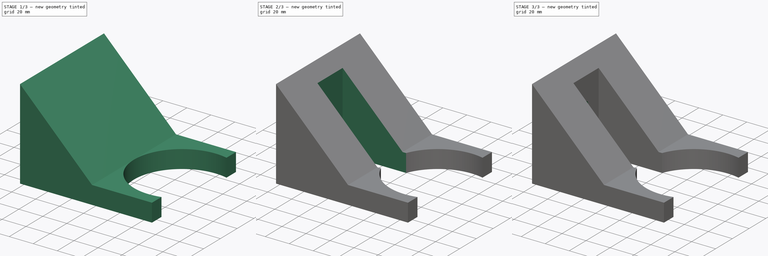
[diagram: build sequence overview — one tinted view per stage of 3, left to right]
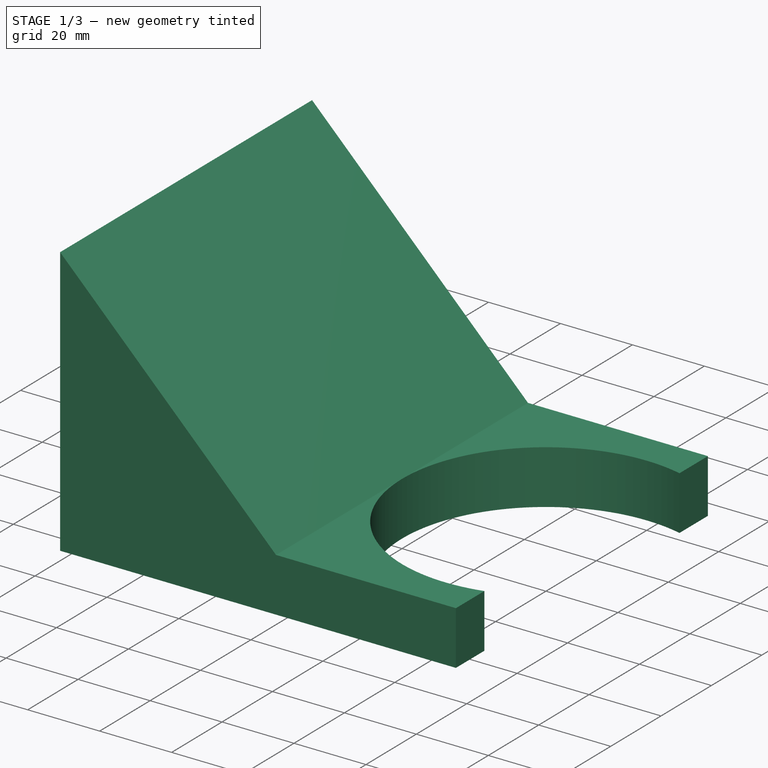
[diagram: stage 1 of 3 — iso view after this stage's code; geometry added in this stage tinted green]
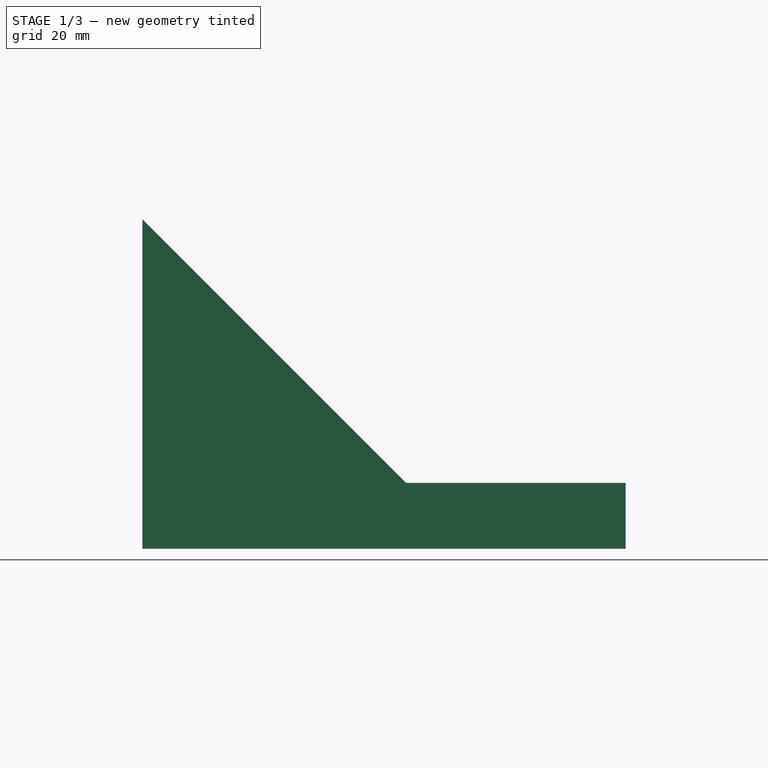
[diagram: stage 1 of 3 — front view after this stage's code; geometry added in this stage tinted green]
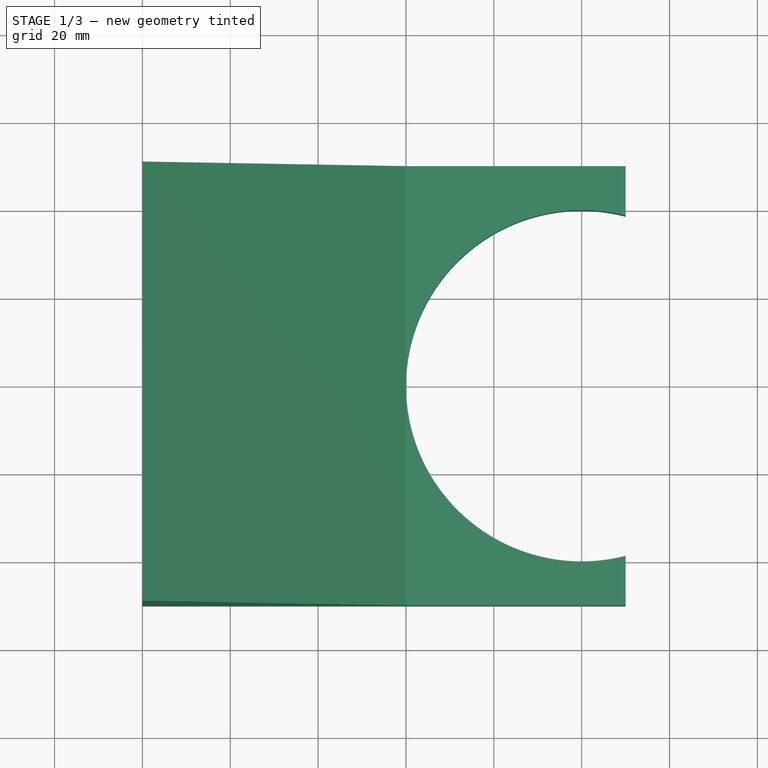
[diagram: stage 1 of 3 — top view after this stage's code; geometry added in this stage tinted green]
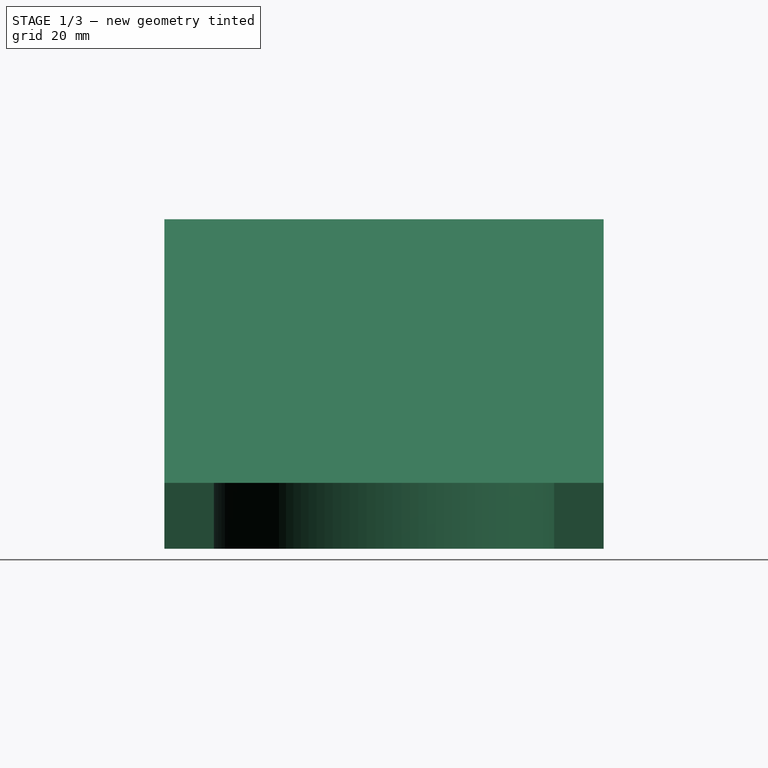
[diagram: stage 1 of 3 — right view after this stage's code; geometry added in this stage tinted green]
FCSTD DOCUMENT  (FreeCAD 1.0R39109 (Git))
Label: vacuumCleanerWallMount
License: All rights reserved
LicenseURL: https://en.wikipedia.org/wiki/All_rights_reserved
objects: Sketcher::SketchObject×3, PartDesign::Pocket×2, PartDesign::Pad×1, Spreadsheet::Sheet×1, PartDesign::SubtractiveCylinder×1, PartDesign::LinearPattern×1, PartDesign::Body×1
note: 21 computed .brp shape members not serialized (recipe doc carries the construction recipe); baked Part::Feature solids carry a one-line shape summary decoded from their .brp

FEATURE [Sketcher::SketchObject] Sketch
  ArcFitTolerance = 1e-06
  AttachmentSupport = -> [XZ_Plane]
  FullyConstrained = true
  MakeInternals = false
  MapMode = 5
  Placement = pos=(0,0,0) rot=(1,0,0;1.5708rad)
  expr: .Constraints.whole_length = <<mea>>.wallToTrashHolder + <<mea>>.trashHolderDia / 2 + <<mea>>.trashHolderClipOffset
  expr: Constraints[15] = <<mea>>.mountThickness
  expr: Constraints[18] = <<mea>>.wallToTrashHolder
  sketch-geometry (7):
    g0: LineSegment StartX=60 StartY=15 StartZ=0 EndX=110 EndY=15 EndZ=0
    g1: LineSegment StartX=110 StartY=15 StartZ=0 EndX=110 EndY=0 EndZ=0
    g2: LineSegment [constr] StartX=110 StartY=0 StartZ=0 EndX=0 EndY=-110 EndZ=0
    g3: LineSegment [constr] StartX=0 StartY=75 StartZ=0 EndX=0 EndY=-110 EndZ=0
    g4: LineSegment StartX=0 StartY=75 StartZ=0 EndX=60 EndY=15 EndZ=0
    g5: LineSegment StartX=0 StartY=0 StartZ=0 EndX=110 EndY=0 EndZ=0
    g6: LineSegment StartX=0 StartY=75 StartZ=0 EndX=0 EndY=0 EndZ=0
  constraints (19):
    c: PointOnObject(g3,g-2)
    c: Horizontal(g0)
    c: Coincident(g1,g0)
    c: Vertical(g1)
    c: Angle(g-1,g2) = -2.35619
    c: Coincident(g2,g1)
    c: PointOnObject(g2,g-2)
    c: Coincident(g3,g2)
    c: Angle(g-1,g4) = -0.785398
    c: Coincident(g4,g3)
    c: Coincident(g4,g0)
    c: PointOnObject(g1,g-1)
    c: Distance(g1,g3) = 110  'whole_length'
    c: Coincident(g5,g-1)
    c: Coincident(g5,g1)
    c: Distance(g1,g1) = 15
    c: Coincident(g6,g3)
    c: Coincident(g6,g5)
    c: DistanceX(g-1,g0) = 60
FEATURE [PartDesign::Pad] Pad
  Direction = (0,-1,2e-16)
  Length = 100
  Length2 = 10
  Midplane = true
  Placement = pos=(0,0,0) rot=(1,0,0;1.5708rad)
  Profile = -> Sketch
  ReferenceAxis = -> Sketch [N_Axis]
  Refine = true
  Suppressed = false
  Type = 0
  expr: Length = <<mea>>.trashHolderDia + <<mea>>.wallThickness * 2
FEATURE [Sketcher::SketchObject] Sketch001
  ArcFitTolerance = 1e-06
  AttachmentSupport = -> [Pad]
  ExternalGeometry = -> [Pad]
  FullyConstrained = true
  MakeInternals = false
  MapMode = 5
  Placement = pos=(0,3.3e-15,15) rot=(0,0,1;3.14159rad)
  expr: Constraints[1] = <<mea>>.trashHolderDia
  expr: Constraints[4] = <<mea>>.wallToTrashHolder
  sketch-geometry (2):
    g0: Circle CenterX=-100 CenterY=0 CenterZ=0 NormalX=0 NormalY=0 NormalZ=1 AngleXU=0 Radius=40
    g1: GeomPoint [constr] X=-60 Y=0 Z=0
  constraints (5):
    c: PointOnObject(g0,g-1)
    c: Diameter(g0) = 80
    c: PointOnObject(g1,g0)
    c: PointOnObject(g1,g-1)
    c: DistanceX(g1,g-1) = 60
FEATURE [PartDesign::Pocket] Pocket
  BaseFeature = -> Pad
  Direction = (0,0,-1)
  Length = 5
  Length2 = 5
  Placement = pos=(0,0,0) rot=(1,0,0;1.5708rad)
  Profile = -> Sketch001
  ReferenceAxis = -> Sketch001 [N_Axis]
  Refine = true
  Suppressed = false
  Type = 1
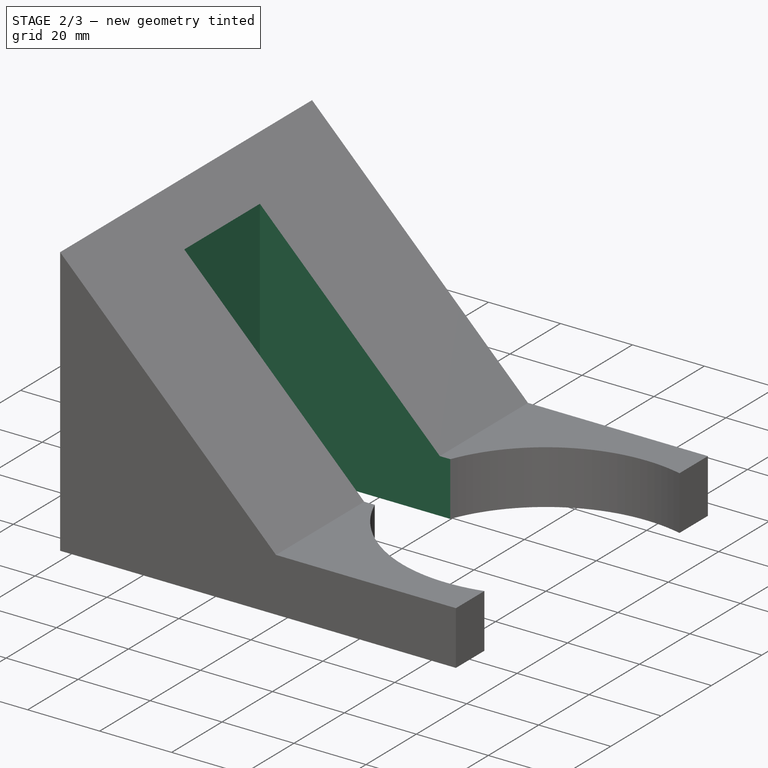
[diagram: stage 2 of 3 — iso view after this stage's code; geometry added in this stage tinted green]
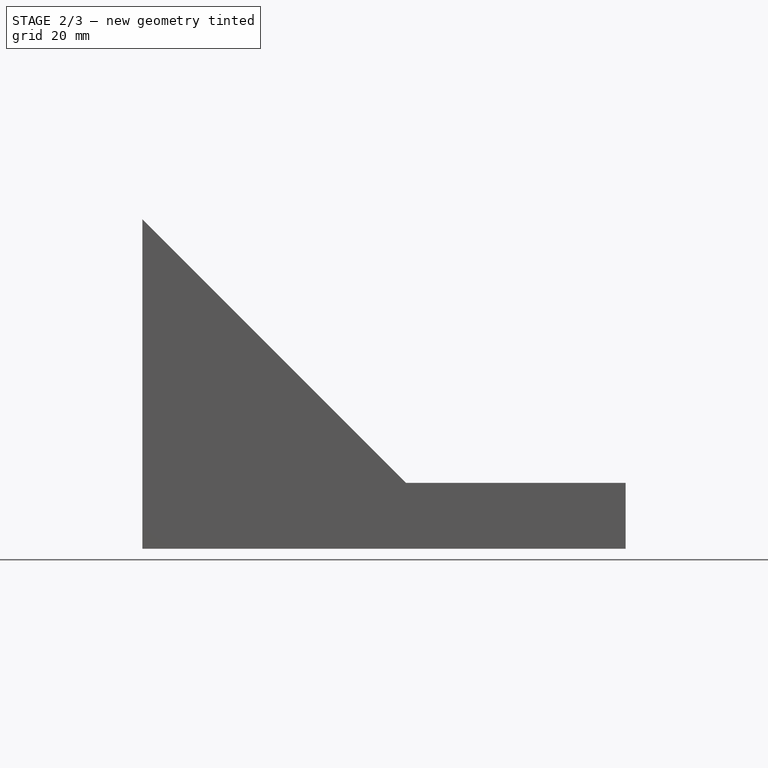
[diagram: stage 2 of 3 — front view after this stage's code; geometry added in this stage tinted green]
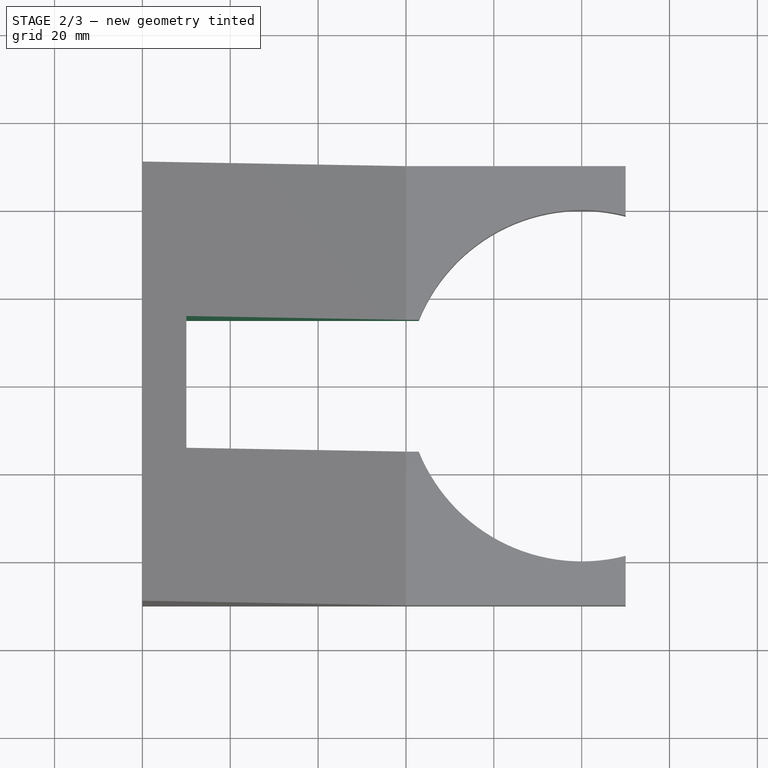
[diagram: stage 2 of 3 — top view after this stage's code; geometry added in this stage tinted green]
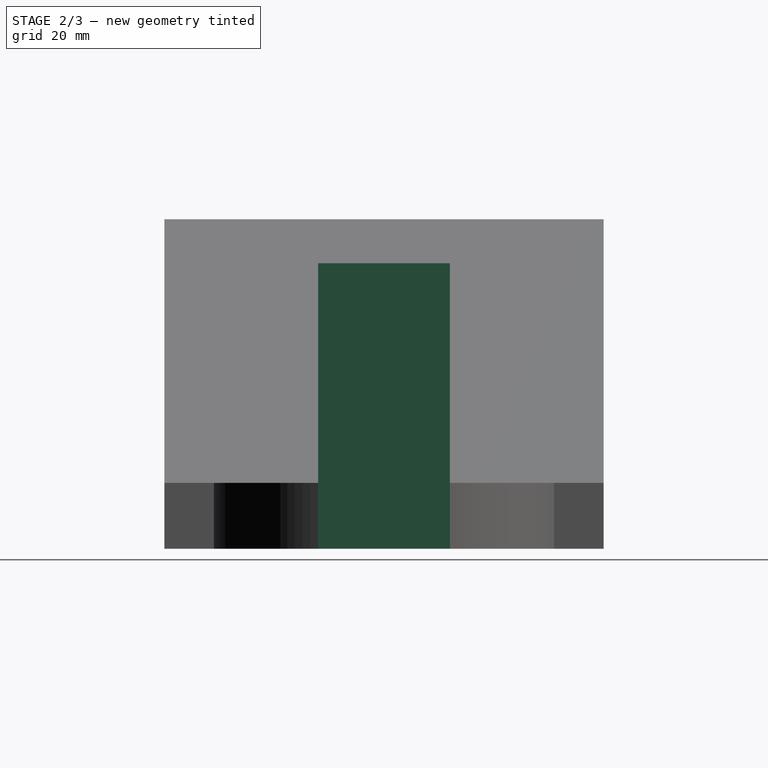
[diagram: stage 2 of 3 — right view after this stage's code; geometry added in this stage tinted green]
FEATURE [Sketcher::SketchObject] Sketch002
  ArcFitTolerance = 1e-06
  AttachmentSupport = -> [Pocket]
  FullyConstrained = true
  MakeInternals = false
  MapMode = 5
  Placement = pos=(0,3.3e-15,15) rot=(0,0,1;3.14159rad)
  expr: Constraints[12] = Sketch.Constraints.whole_length
  expr: Constraints[13] = <<mea>>.wallThickness
  expr: Constraints[14] = <<mea>>.screwPocketWidth
  sketch-geometry (6):
    g0: LineSegment [constr] StartX=0 StartY=0 StartZ=0 EndX=-10 EndY=0 EndZ=0
    g1: LineSegment StartX=-10 StartY=0 StartZ=0 EndX=-10 EndY=15 EndZ=0
    g2: LineSegment StartX=-10 StartY=15 StartZ=0 EndX=-120 EndY=15 EndZ=0
    g3: LineSegment StartX=-120 StartY=15 StartZ=0 EndX=-120 EndY=-15 EndZ=0
    g4: LineSegment StartX=-120 StartY=-15 StartZ=0 EndX=-10 EndY=-15 EndZ=0
    g5: LineSegment StartX=-10 StartY=-15 StartZ=0 EndX=-10 EndY=0 EndZ=0
  constraints (16):
    c: Coincident(g0,g-1)
    c: PointOnObject(g0,g-1)
    c: Coincident(g1,g0)
    c: Vertical(g1)
    c: Coincident(g2,g1)
    c: Horizontal(g2)
    c: Coincident(g3,g2)
    c: Horizontal(g4)
    c: Coincident(g5,g0)
    c: Vertical(g5)
    c: Coincident(g4,g3)
    c: Coincident(g4,g5)
    c: DistanceX(g2,g2) = 110
    c: DistanceX(g0,g0) = 10
    c: DistanceY(g3,g3) = 30
    c: Symmetric(g2,g3,g-1)
FEATURE [PartDesign::Pocket] Pocket001
  BaseFeature = -> Pocket
  Direction = (0,0,-1)
  Length = 5
  Length2 = 5
  Midplane = true
  Placement = pos=(0,0,0) rot=(1,0,0;1.5708rad)
  Profile = -> Sketch002
  ReferenceAxis = -> Sketch002 [N_Axis]
  Refine = true
  Suppressed = false
  Type = 1
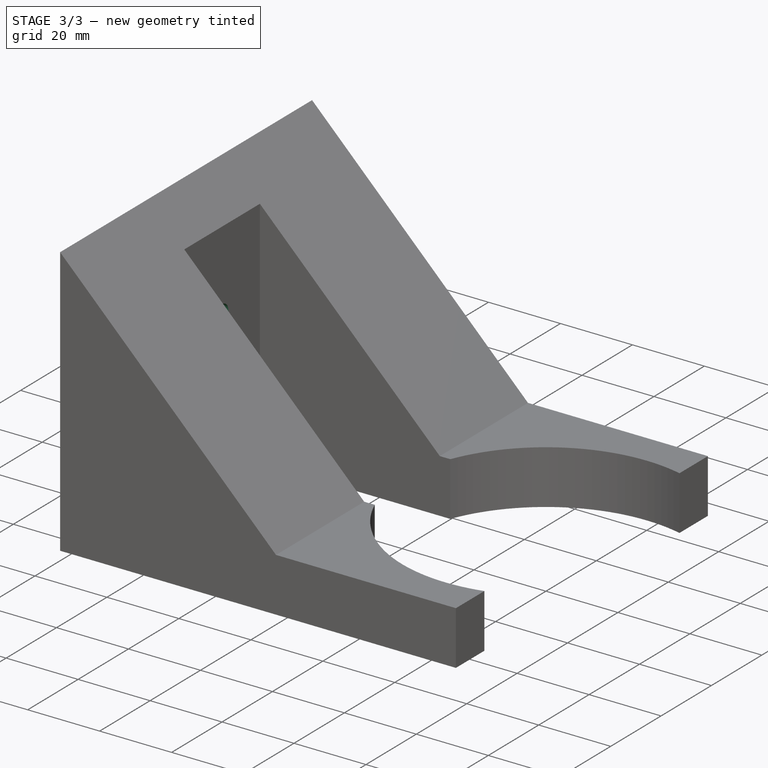
[diagram: stage 3 of 3 — iso view after this stage's code; geometry added in this stage tinted green]
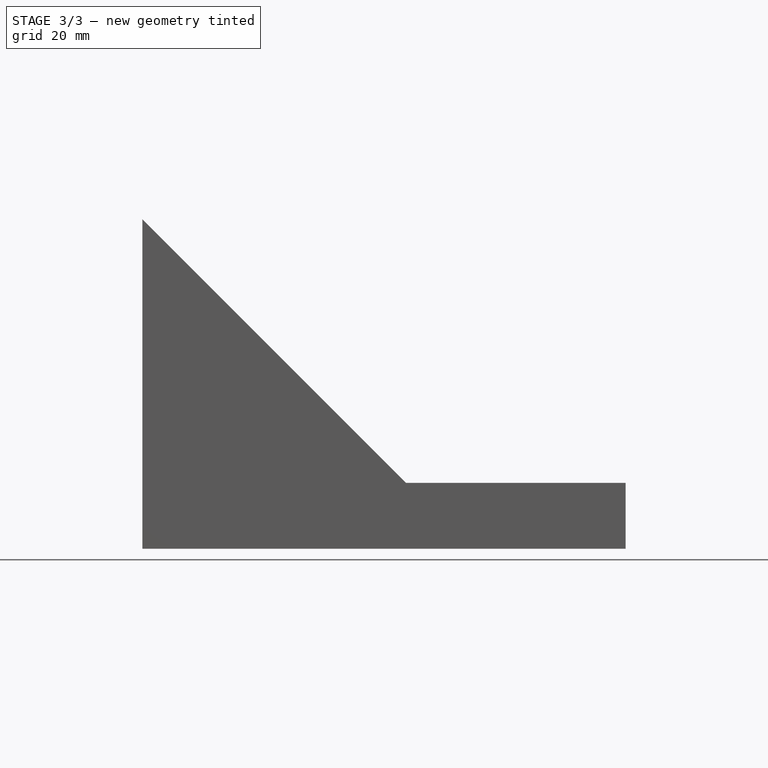
[diagram: stage 3 of 3 — front view after this stage's code; geometry added in this stage tinted green]
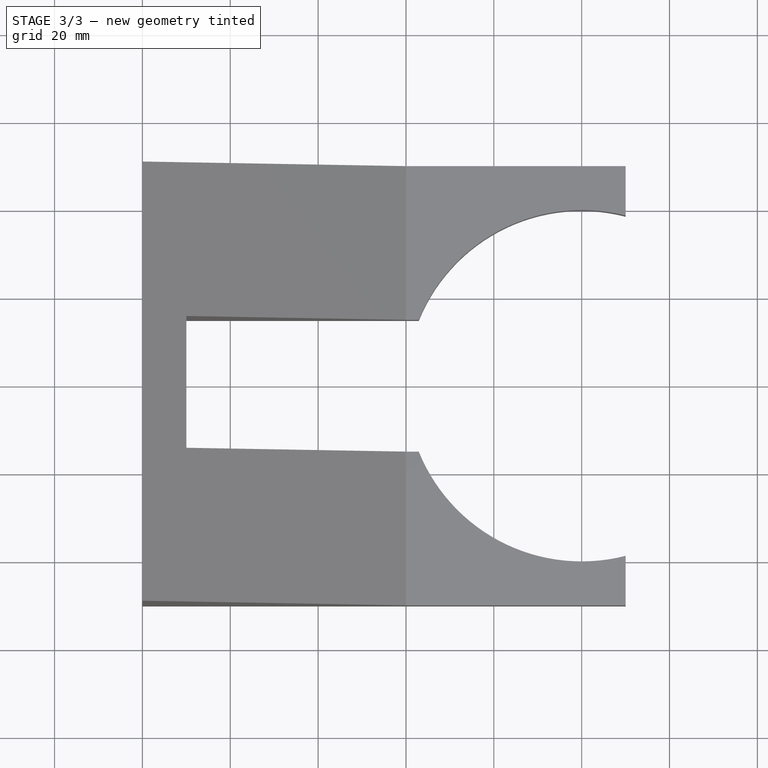
[diagram: stage 3 of 3 — top view after this stage's code; geometry added in this stage tinted green]
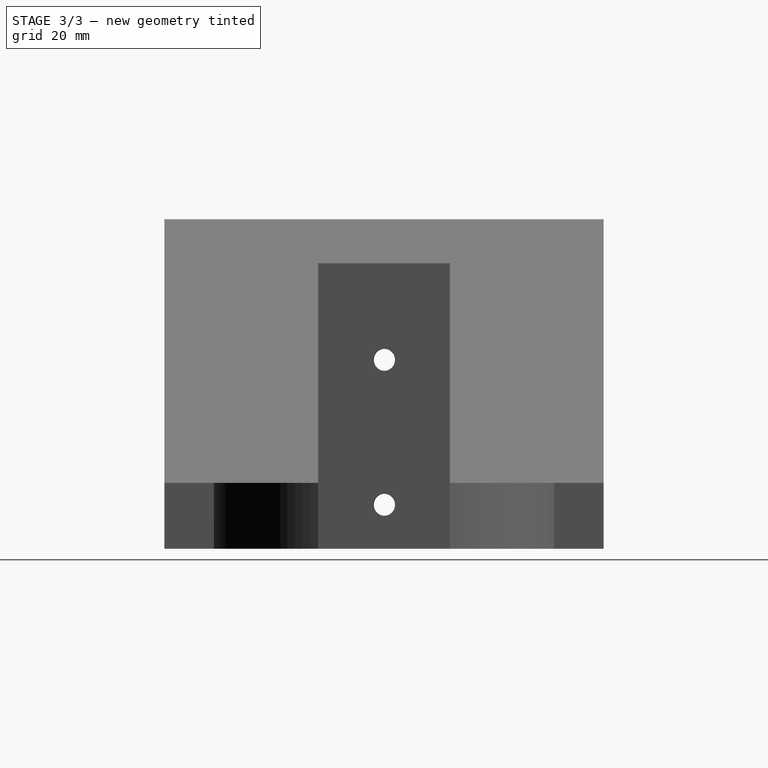
[diagram: stage 3 of 3 — right view after this stage's code; geometry added in this stage tinted green]
FEATURE [Spreadsheet::Sheet] Spreadsheet  label="mea"
  cells = A1='trashHolderDia; B1(trashHolderDia)==80 mm; A2='wallToTrashHolder; B2(wallToTrashHolder)==60 mm; A3='trashHolderClipOffset; B3(trashHolderClipOffset)==10 mm; A4='mountThickness; B4(mountThickness)==15 mm; A5='screwPocketWidth; B5(screwPocketWidth)==30 mm; A6='screwHoleDia; B6(screwHoleDia)==5 mm; A7='wallThickness; B7(wallThickness)==10 mm
FEATURE [PartDesign::SubtractiveCylinder] Cylinder
  Angle = 360
  AttacherType = Attacher::AttachEngine3D
  AttachmentOffset = pos=(-10,0,0) rot=(0,0,1;0rad)
  AttachmentSupport = -> [Pocket001]
  BaseFeature = -> Pocket001
  FirstAngle = 0
  Height = 10
  MapMode = 5
  Placement = pos=(10,0,10) rot=(0.707107,0,-0.707107;3.14159rad)
  Radius = 2.5
  Refine = true
  SecondAngle = -1
  Suppressed = false
  expr: Height = <<mea>>.wallThickness
  expr: Radius = <<mea>>.screwHoleDia / 2
FEATURE [PartDesign::LinearPattern] LinearPattern
  BaseFeature = -> Cylinder
  Direction = -> Z_Axis
  Length = 33
  Mode = 0
  Occurrences = 2
  Offset = 33
  Originals = -> [Cylinder]
  Placement = pos=(10,0,10) rot=(0.707107,0,-0.707107;3.14159rad)
  Refine = true
  Suppressed = false
  TransformMode = 0
FEATURE [PartDesign::Body] Body
  AllowCompound = false
  Group = -> [Sketch,Pad,Sketch001,Pocket,Sketch002,Pocket001,Cylinder,LinearPattern]
  Origin = -> Origin
  Tip = -> LinearPattern
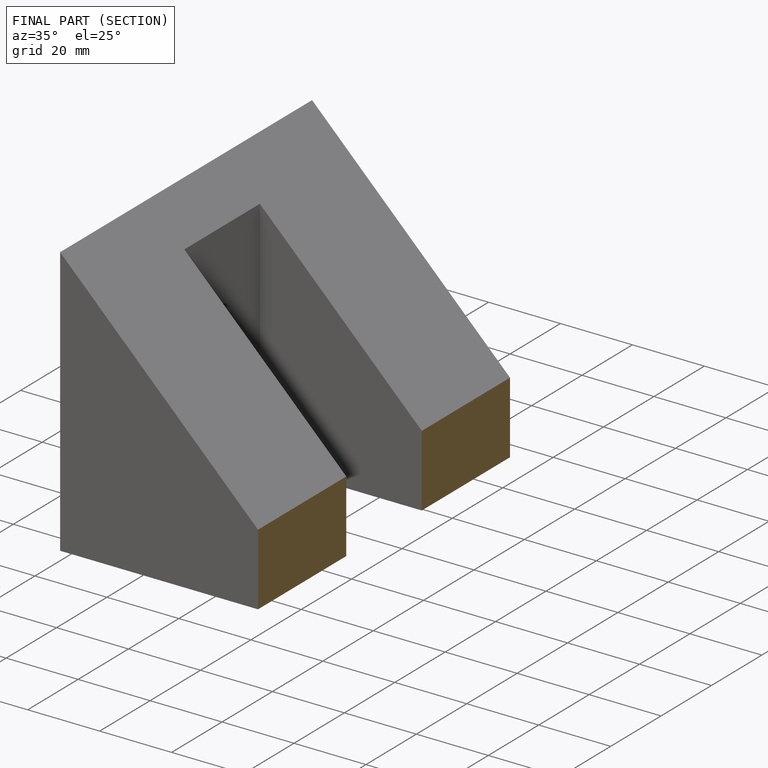
[diagram: finished part — half-section view (interior)]
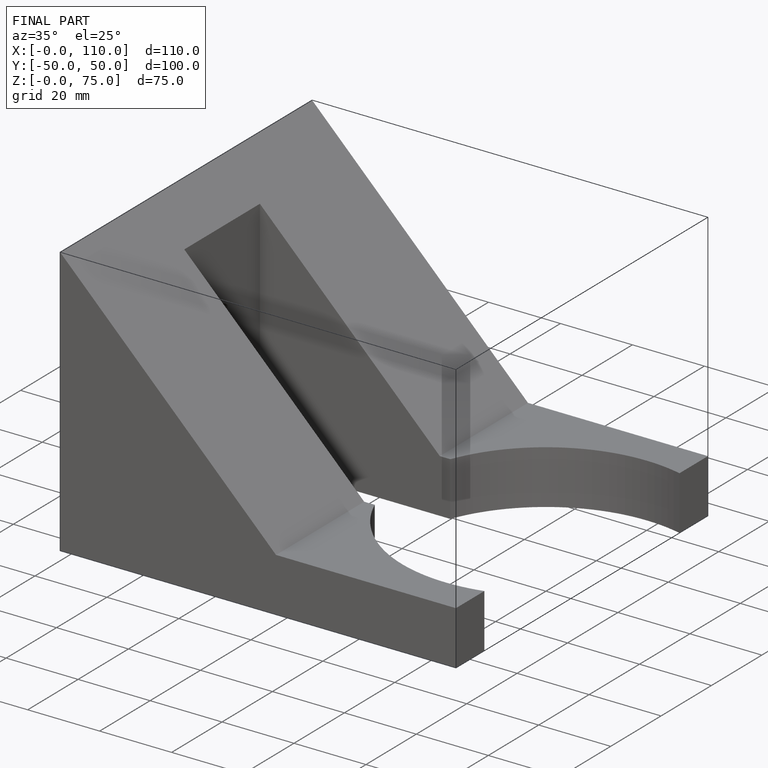
[diagram: finished part — iso view with bounding-box wireframe]
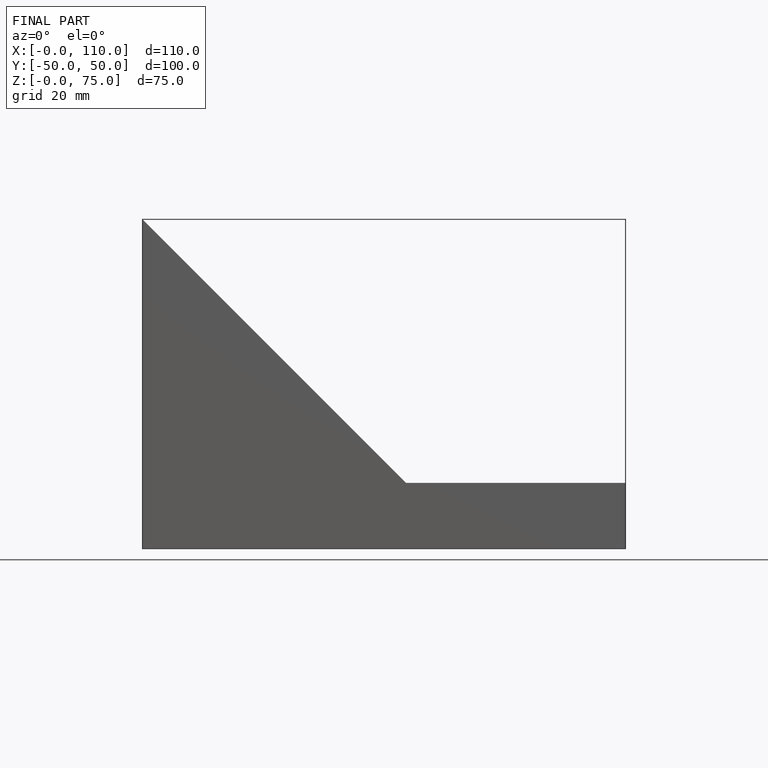
[diagram: finished part — front view with bounding-box wireframe]
